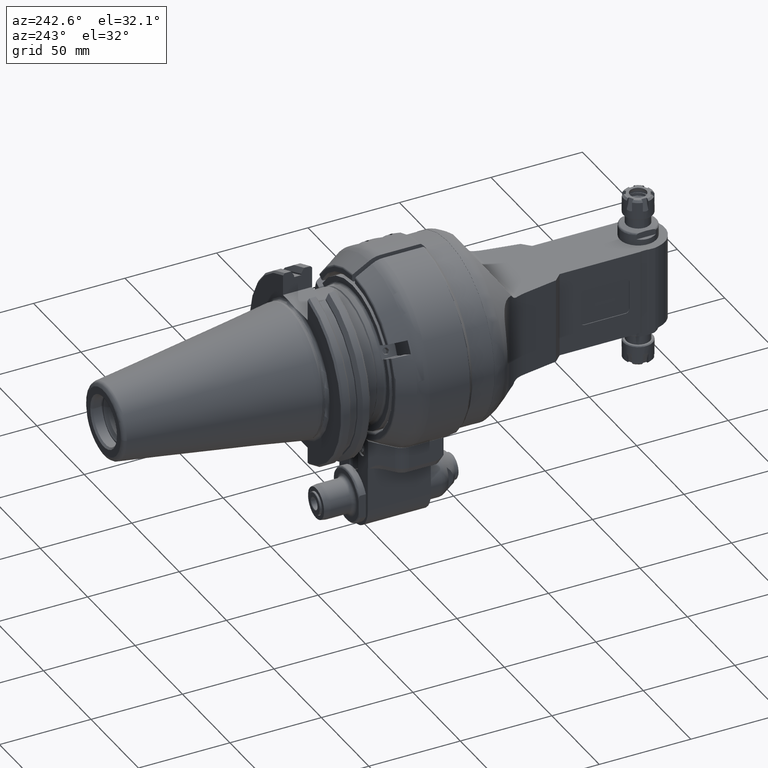
[diagram: clean part render]
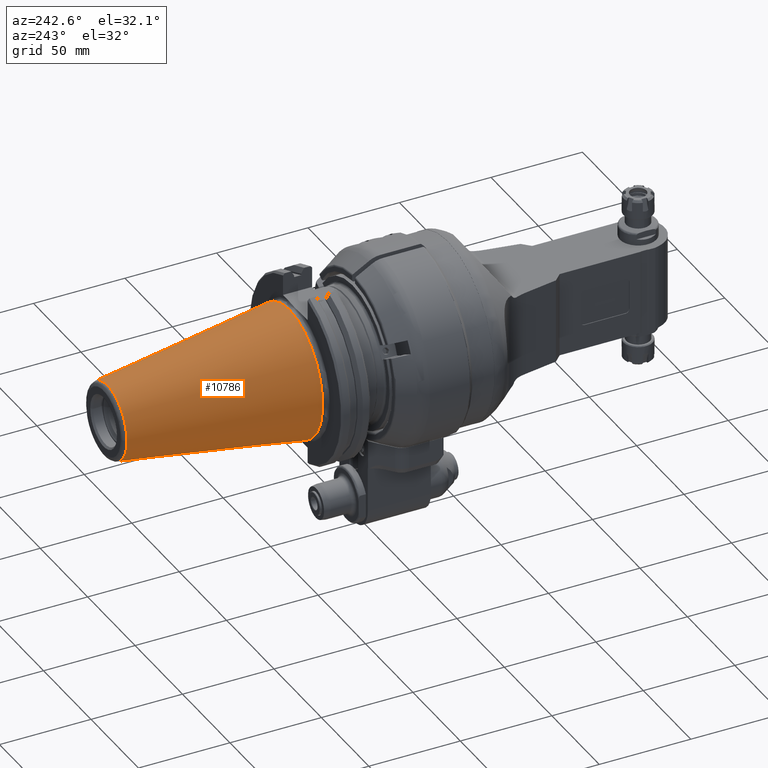
[diagram: same view with one face highlighted and labeled with its STEP entity id]
A machine part, auxiliary view. The second image highlights one B-rep face of the part: STEP entity #10786.
In plain terms, the highlighted conical surface has half-angle 8.297 deg.
Its self-contained STEP definition (entity closure, byte-faithful):
#166=CONICAL_SURFACE('',#12068,1.08947467757008,0.144812411498922);
#1255=CIRCLE('',#12066,1.375);
#1256=CIRCLE('',#12067,1.375);
#1257=CIRCLE('',#12069,0.803949355140551);
#1258=CIRCLE('',#12070,0.803949355140551);
#1858=FACE_OUTER_BOUND('',#2594,.T.);
#2594=EDGE_LOOP('',(#9580,#9581,#9582,#9583,#9584,#9585));
#3352=LINE('',#21291,#4105);
#4105=VECTOR('',#15162,1.08947467757008);
#5136=VERTEX_POINT('',#21284);
#5137=VERTEX_POINT('',#21285);
#5138=VERTEX_POINT('',#21290);
#5139=VERTEX_POINT('',#21292);
#6644=EDGE_CURVE('',#5136,#5137,#1255,.T.);
#6646=EDGE_CURVE('',#5137,#5136,#1256,.T.);
#6647=EDGE_CURVE('',#5136,#5138,#3352,.T.);
#6648=EDGE_CURVE('',#5139,#5138,#1257,.T.);
#6649=EDGE_CURVE('',#5138,#5139,#1258,.T.);
#9580=ORIENTED_EDGE('',*,*,#6644,.F.);
#9581=ORIENTED_EDGE('',*,*,#6647,.T.);
#9582=ORIENTED_EDGE('',*,*,#6648,.F.);
#9583=ORIENTED_EDGE('',*,*,#6649,.F.);
#9584=ORIENTED_EDGE('',*,*,#6647,.F.);
#9585=ORIENTED_EDGE('',*,*,#6646,.F.);
#10786=ADVANCED_FACE('',(#1858),#166,.T.);
#12066=AXIS2_PLACEMENT_3D('',#21286,#15155,#15156);
#12067=AXIS2_PLACEMENT_3D('',#21288,#15158,#15159);
#12068=AXIS2_PLACEMENT_3D('',#21289,#15160,#15161);
#12069=AXIS2_PLACEMENT_3D('',#21293,#15163,#15164);
#12070=AXIS2_PLACEMENT_3D('',#21294,#15165,#15166);
#15155=DIRECTION('center_axis',(0.,-1.,0.));
#15156=DIRECTION('ref_axis',(0.,0.,1.));
#15158=DIRECTION('center_axis',(0.,-1.,0.));
#15159=DIRECTION('ref_axis',(0.,0.,1.));
#15160=DIRECTION('center_axis',(0.,-1.,0.));
#15161=DIRECTION('ref_axis',(0.,0.,1.));
#15162=DIRECTION('',(-1.76724869581176E-17,0.98953299358046,0.144306807239621));
#15163=DIRECTION('center_axis',(0.,1.,0.));
#15164=DIRECTION('ref_axis',(0.,0.,1.));
#15165=DIRECTION('center_axis',(0.,1.,0.));
#15166=DIRECTION('ref_axis',(0.,0.,1.));
#21284=CARTESIAN_POINT('',(0.,2.93307086614173,-1.375));
#21285=CARTESIAN_POINT('',(1.68388934882763E-16,2.93307086614173,1.37500000000001));
#21286=CARTESIAN_POINT('Origin',(0.,2.93307086614173,0.));
#21288=CARTESIAN_POINT('Origin',(0.,2.93307086614173,0.));
#21289=CARTESIAN_POINT('Origin',(0.,4.89095998066929,0.));
#21290=CARTESIAN_POINT('',(9.8455400444881E-17,6.84884909520071,-0.803949355140025));
#21291=CARTESIAN_POINT('',(1.33422167663829E-16,4.89095998066929,-1.08947467757008));
#21292=CARTESIAN_POINT('',(-0.803949355140551,6.84884909520079,-9.84554004449455E-17));
#21293=CARTESIAN_POINT('Origin',(0.,6.84884909520079,0.));
#21294=CARTESIAN_POINT('Origin',(0.,6.84884909520079,0.));